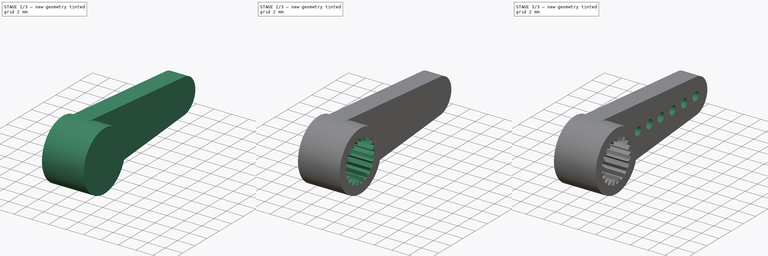
[diagram: build sequence overview — one tinted view per stage of 3, left to right]
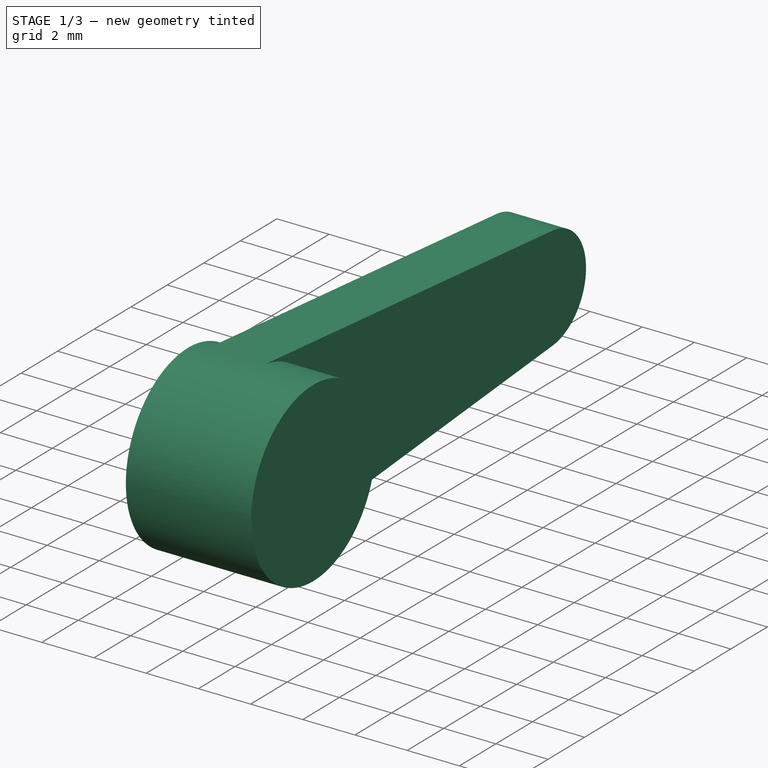
[diagram: stage 1 of 3 — iso view after this stage's code; geometry added in this stage tinted green]
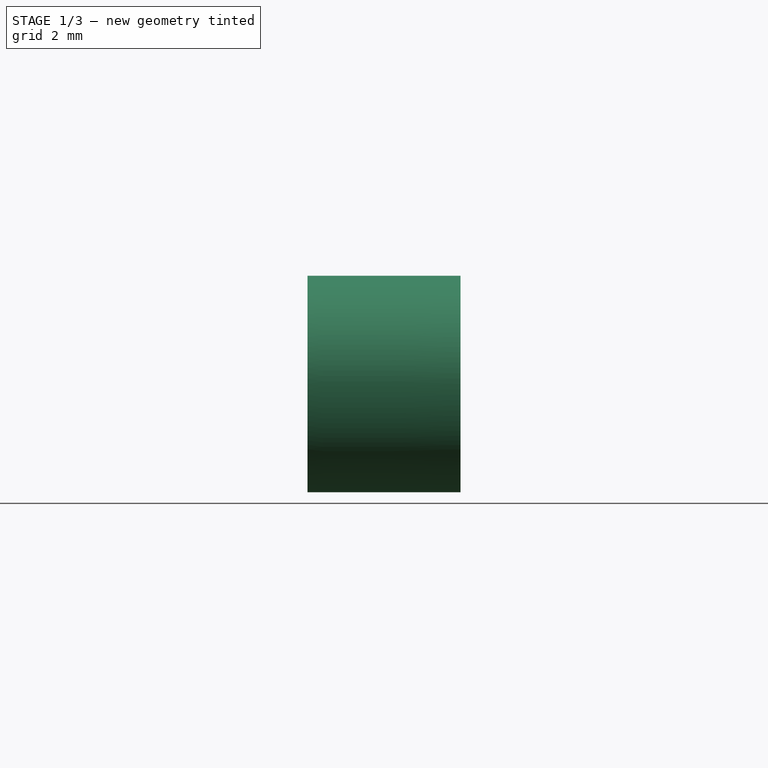
[diagram: stage 1 of 3 — front view after this stage's code; geometry added in this stage tinted green]
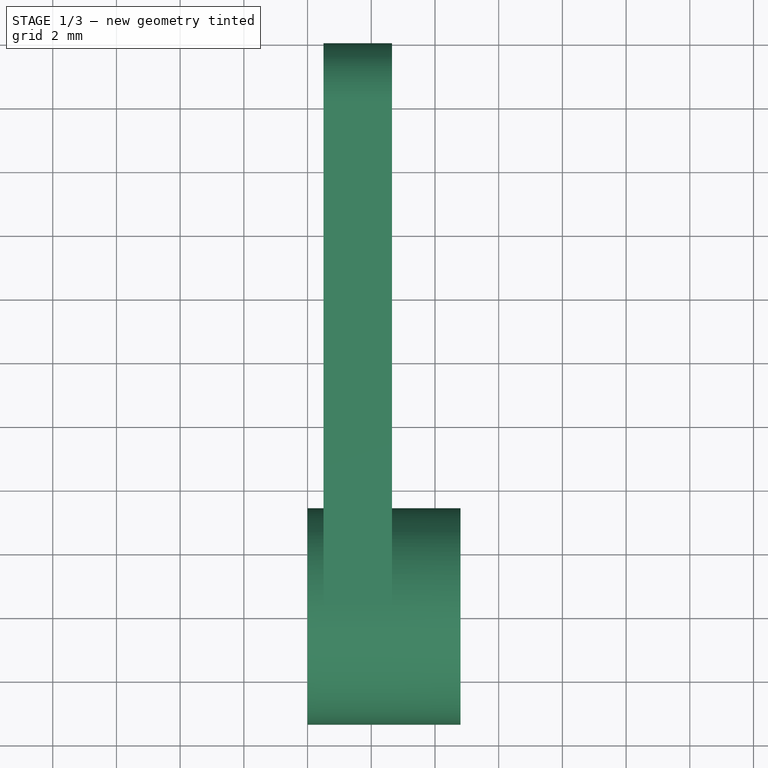
[diagram: stage 1 of 3 — top view after this stage's code; geometry added in this stage tinted green]
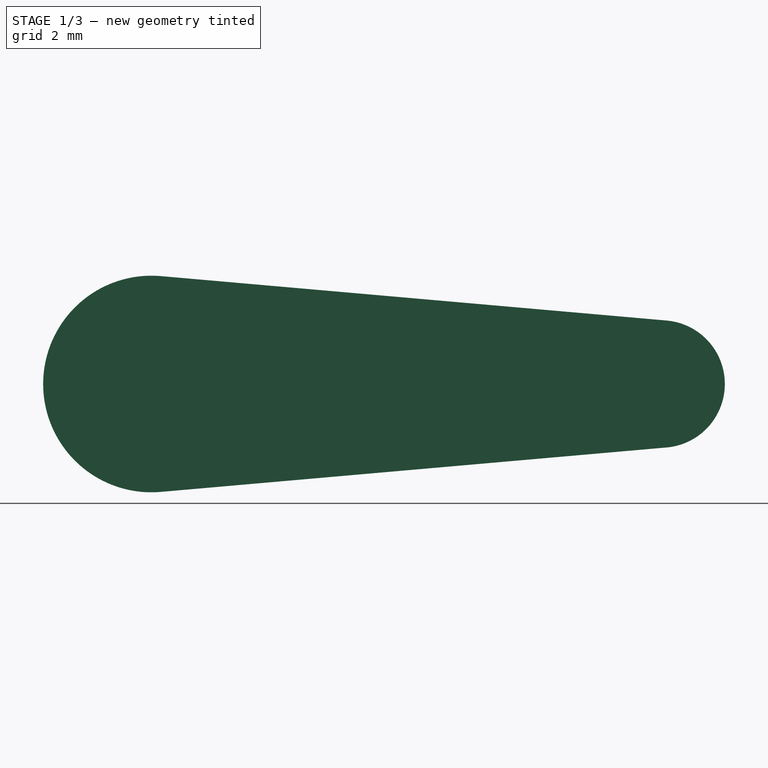
[diagram: stage 1 of 3 — right view after this stage's code; geometry added in this stage tinted green]
FCSTD DOCUMENT  (FreeCAD 0.21R33771 (Git))
Label: MG90S_bras_01
License: All rights reserved
LicenseURL: http://en.wikipedia.org/wiki/All_rights_reserved
objects: Sketcher::SketchObject×6, PartDesign::Pocket×4, PartDesign::Pad×2, PartDesign::PolarPattern×1, PartDesign::Body×1
note: 20 computed .brp shape members not serialized (recipe doc carries the construction recipe); baked Part::Feature solids carry a one-line shape summary decoded from their .brp

FEATURE [Sketcher::SketchObject] Sketch079
  FullyConstrained = true
  MapMode = 5
  Placement = pos=(0,0,0) rot=(0.57735,0.57735,0.57735;2.0944rad)
  Support = -> [YZ_Plane015]
  sketch-geometry (1):
    g0: Circle CenterX=0 CenterY=0 CenterZ=0 NormalX=0 NormalY=0 NormalZ=1 AngleXU=0 Radius=3.4
  constraints (2):
    c: Diameter(g0) = 6.8
    c: Coincident(g0,g-1)
FEATURE [PartDesign::Pad] Pad047
  Direction = (1,-2e-16,3e-16)
  Length = 4.8
  Length2 = 10
  Placement = pos=(0,0,0) rot=(0.57735,0.57735,0.57735;2.0944rad)
  Profile = -> Sketch079
  ReferenceAxis = -> Sketch079 [N_Axis]
  Type = 0
FEATURE [Sketcher::SketchObject] Sketch080
  AttachmentOffset = pos=(0,0,0.5) rot=(0,0,1;0rad)
  FullyConstrained = true
  MapMode = 5
  Placement = pos=(0.5,-1e-16,1e-16) rot=(0.57735,0.57735,0.57735;2.0944rad)
  Support = -> [YZ_Plane015]
  sketch-geometry (5):
    g0: ArcOfCircle CenterX=16 CenterY=0 CenterZ=0 NormalX=0 NormalY=0 NormalZ=1 AngleXU=0 Radius=2 StartAngle=4.8 EndAngle=7.76637
    g1: GeomPoint X=0 Y=0 Z=0
    g2: ArcOfCircle CenterX=0 CenterY=0 CenterZ=0 NormalX=0 NormalY=0 NormalZ=1 AngleXU=0 Radius=3.4 StartAngle=1.48318 EndAngle=4.8
    g3: LineSegment StartX=0.2975 StartY=3.38696 StartZ=0 EndX=16.175 EndY=1.99233 EndZ=0
    g4: LineSegment StartX=0.2975 StartY=-3.38696 StartZ=0 EndX=16.175 EndY=-1.99233 EndZ=0
  constraints (11):
    c: PointOnObject(g1,g-2)
    c: Horizontal(g0,g1)
    c: DistanceX(g1,g0) = 16
    c: Tangent(g2,g3) = 1.5708
    c: Tangent(g4,g2) = -1.5708
    c: Tangent(g0,g3) = 1.5708
    c: Tangent(g0,g4) = -1.5708
    c: Diameter(g2) = 6.8
    c: Diameter(g0) = 4
    c: Coincident(g2,g-1)
    c: PointOnObject(g0,g-1)
FEATURE [PartDesign::Pad] Pad048
  BaseFeature = -> Pad047
  Direction = (1,-2e-16,3e-16)
  Length = 2.15
  Length2 = 10
  Placement = pos=(0,0,0) rot=(0.57735,0.57735,0.57735;2.0944rad)
  Profile = -> Sketch080
  ReferenceAxis = -> Sketch080 [N_Axis]
  Type = 0
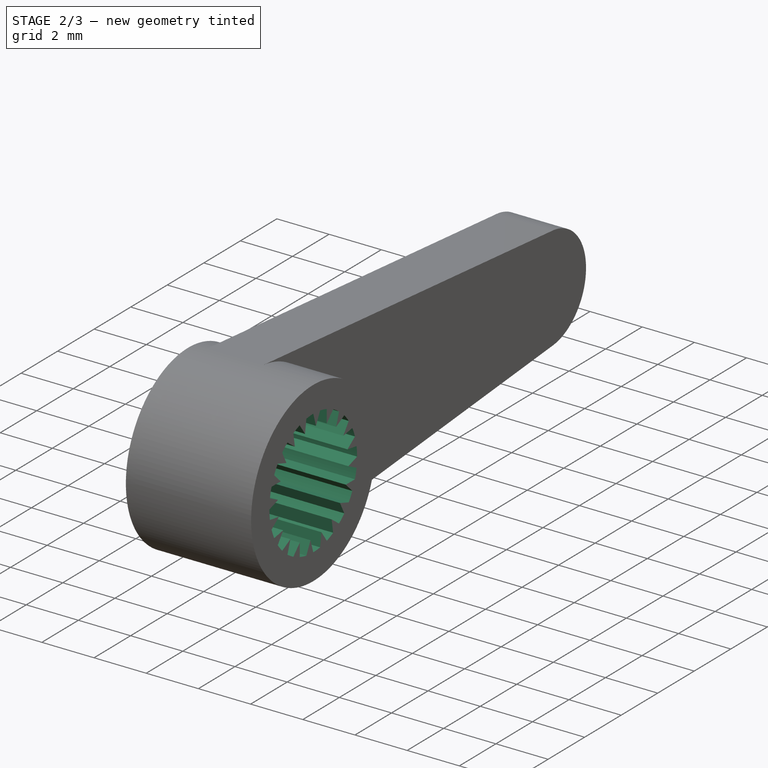
[diagram: stage 2 of 3 — iso view after this stage's code; geometry added in this stage tinted green]
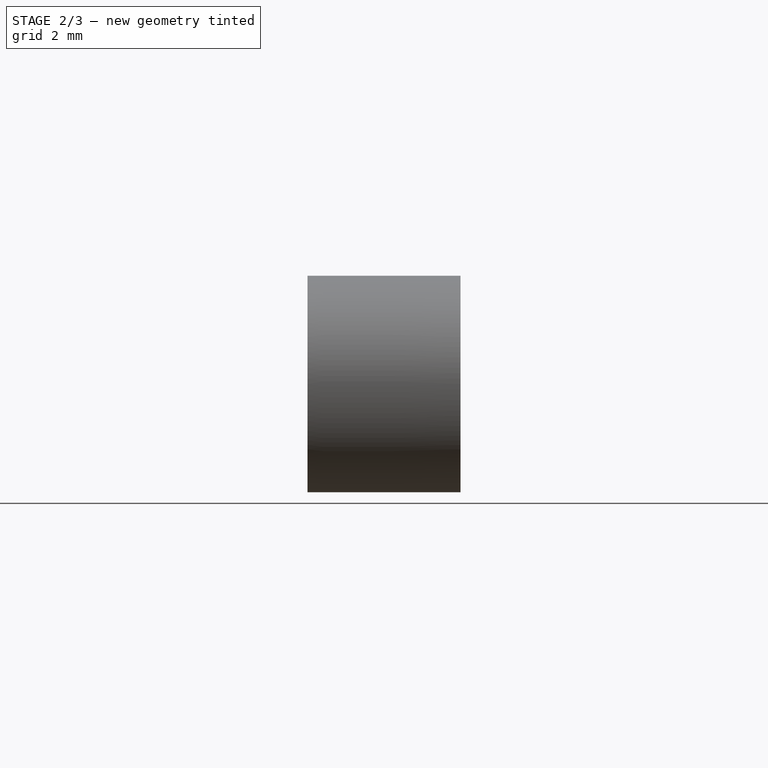
[diagram: stage 2 of 3 — front view after this stage's code; geometry added in this stage tinted green]
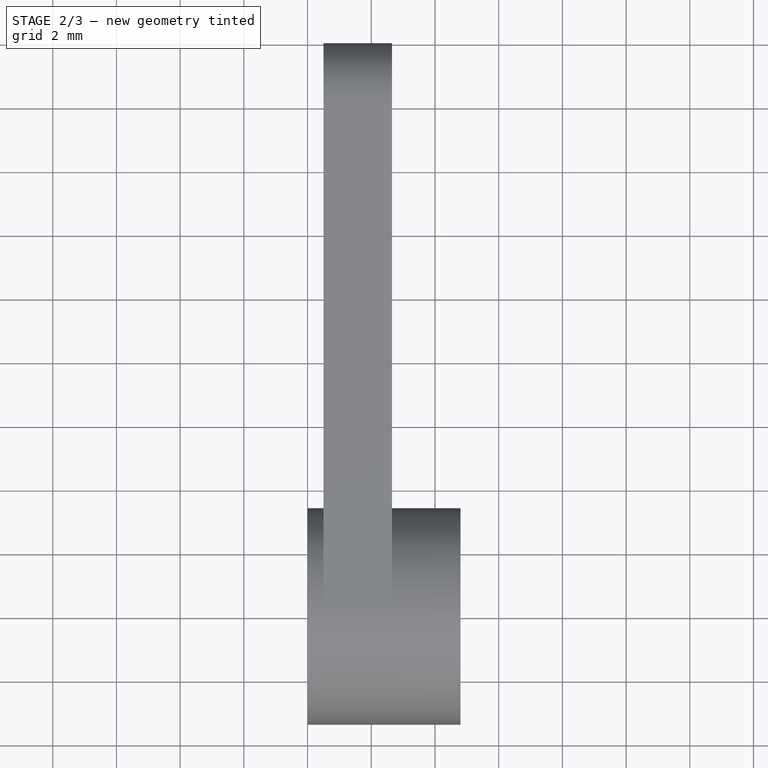
[diagram: stage 2 of 3 — top view after this stage's code; geometry added in this stage tinted green]
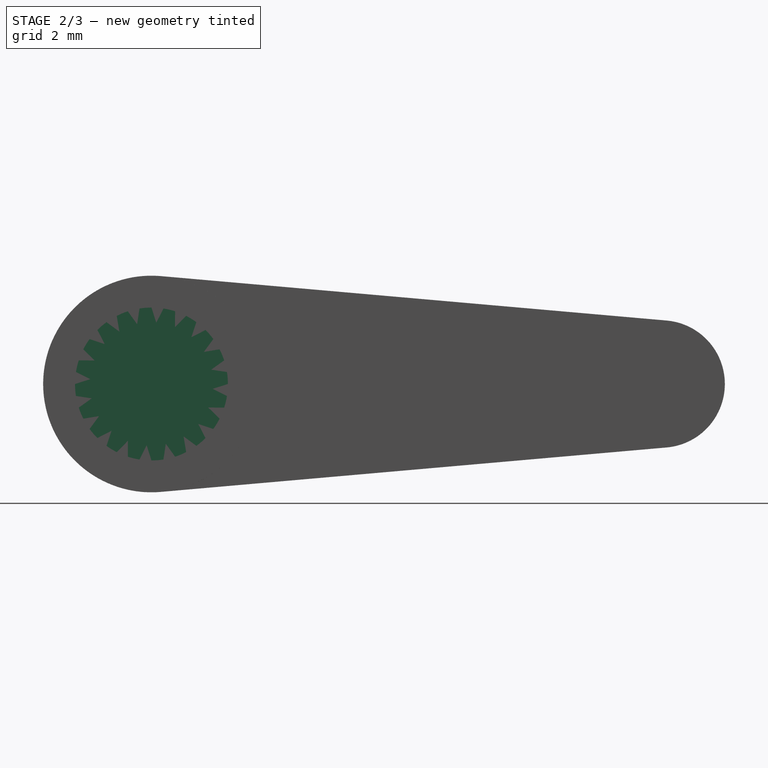
[diagram: stage 2 of 3 — right view after this stage's code; geometry added in this stage tinted green]
FEATURE [Sketcher::SketchObject] Sketch081
  FullyConstrained = false
  MapMode = 5
  Placement = pos=(4.8,-1.1e-15,1.1e-15) rot=(0.57735,0.57735,0.57735;2.0944rad)
  Support = -> [Pad048]
  sketch-geometry (8):
    g0: LineSegment StartX=0 StartY=0 StartZ=0 EndX=3.13957 EndY=0.497259 EndZ=0
    g1: Circle CenterX=0 CenterY=0 CenterZ=0 NormalX=0 NormalY=0 NormalZ=1 AngleXU=0 Radius=2.4
    g2: LineSegment StartX=0 StartY=0 StartZ=0 EndX=3.0275 EndY=-0.479508 EndZ=0
    g3: LineSegment StartX=2.4 StartY=0 StartZ=0 EndX=1.92347 EndY=-0.15138 EndZ=0
    g4: LineSegment StartX=1.92347 StartY=-0.15138 StartZ=0 EndX=2.37045 EndY=-0.375443 EndZ=0
    g5: ArcOfCircle CenterX=0 CenterY=0 CenterZ=0 NormalX=0 NormalY=0 NormalZ=1 AngleXU=0 Radius=2.4 StartAngle=0 EndAngle=0.15708
    g6: LineSegment StartX=2.37045 StartY=0.375443 StartZ=0 EndX=0 EndY=-1e-16 EndZ=0
    g7: LineSegment StartX=0 StartY=0 StartZ=0 EndX=2.37045 EndY=-0.375443 EndZ=0
  constraints (20):
    c: Coincident(g0,g-1)
    c: Coincident(g1,g0)
    c: Diameter(g1) = 4.8
    c: Angle(g-1,g0) = 0.15708
    c: Coincident(g2,g0)
    c: Angle(g2,g-1) = 0.15708
    c: PointOnObject(g3,g1)
    c: Coincident(g4,g3)
    c: PointOnObject(g4,g2)
    c: Coincident(g5,g0)
    c: Coincident(g5,g3)
    c: PointOnObject(g5,g0)
    c: PointOnObject(g4,g1)
    c: Equal(g3,g4)
    c: Distance(g3) = 0.5
    c: PointOnObject(g3,g-1)
    c: Coincident(g6,g5)
    c: Coincident(g6,g5)
    c: Coincident(g7,g5)
    c: Coincident(g7,g4)
FEATURE [PartDesign::Pocket] Pocket033
  BaseFeature = -> Pad048
  Direction = (-1,9e-16,-6e-16)
  Length = 3
  Length2 = 5
  Placement = pos=(0,0,0) rot=(0.57735,0.57735,0.57735;2.0944rad)
  Profile = -> Sketch081
  ReferenceAxis = -> Sketch081 [N_Axis]
  Type = 0
FEATURE [PartDesign::PolarPattern] PolarPattern
  Angle = 360
  Axis = -> Sketch081 [N_Axis]
  BaseFeature = -> Pocket033
  Occurrences = 20
  Originals = -> [Pocket033]
  Placement = pos=(0,0,0) rot=(0.57735,0.57735,0.57735;2.0944rad)
FEATURE [Sketcher::SketchObject] Sketch082
  FullyConstrained = true
  MapMode = 5
  Placement = pos=(0,0,0) rot=(0.57735,0.57735,-0.57735;4.18879rad)
  Support = -> [PolarPattern]
  sketch-geometry (1):
    g0: Circle CenterX=0 CenterY=0 CenterZ=0 NormalX=0 NormalY=0 NormalZ=1 AngleXU=0 Radius=2.4
  constraints (2):
    c: Coincident(g0,g-1)
    c: Diameter(g0) = 4.8
FEATURE [PartDesign::Pocket] Pocket034
  BaseFeature = -> PolarPattern
  Direction = (1,-8e-16,7e-16)
  Length = 1
  Length2 = 5
  Placement = pos=(0,0,0) rot=(0.57735,0.57735,0.57735;2.0944rad)
  Profile = -> Sketch082
  ReferenceAxis = -> Sketch082 [N_Axis]
  Type = 0
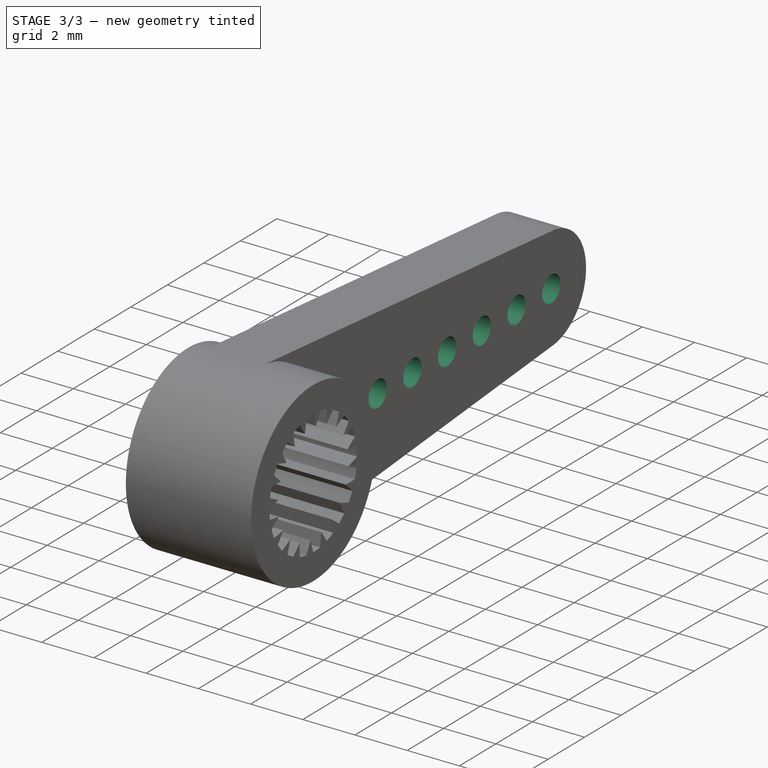
[diagram: stage 3 of 3 — iso view after this stage's code; geometry added in this stage tinted green]
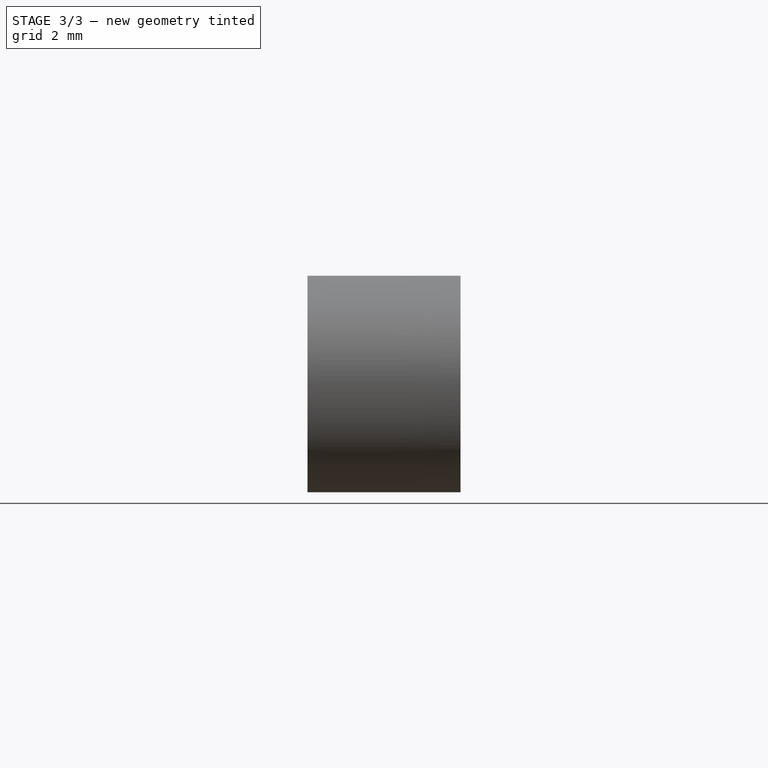
[diagram: stage 3 of 3 — front view after this stage's code; geometry added in this stage tinted green]
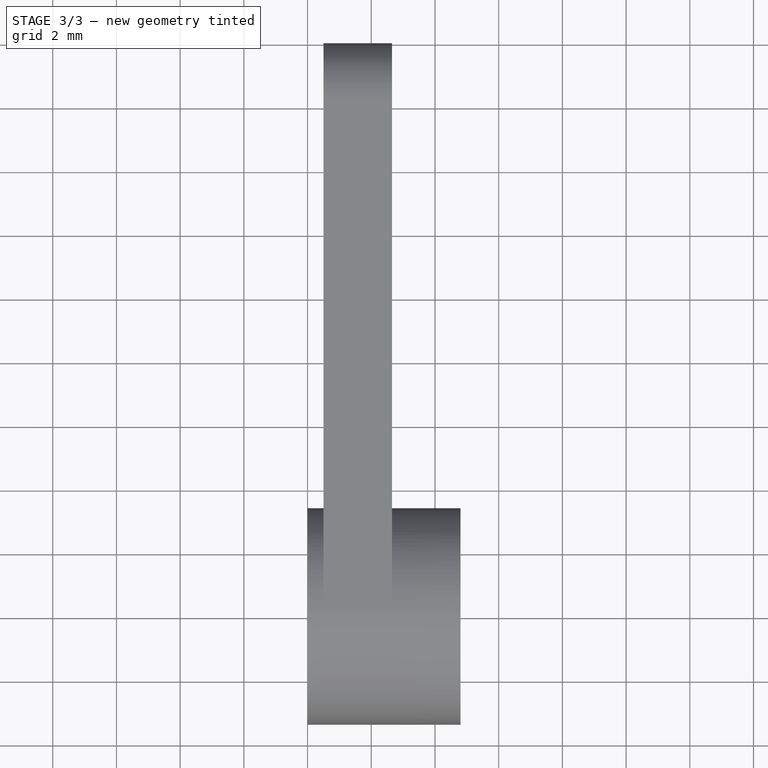
[diagram: stage 3 of 3 — top view after this stage's code; geometry added in this stage tinted green]
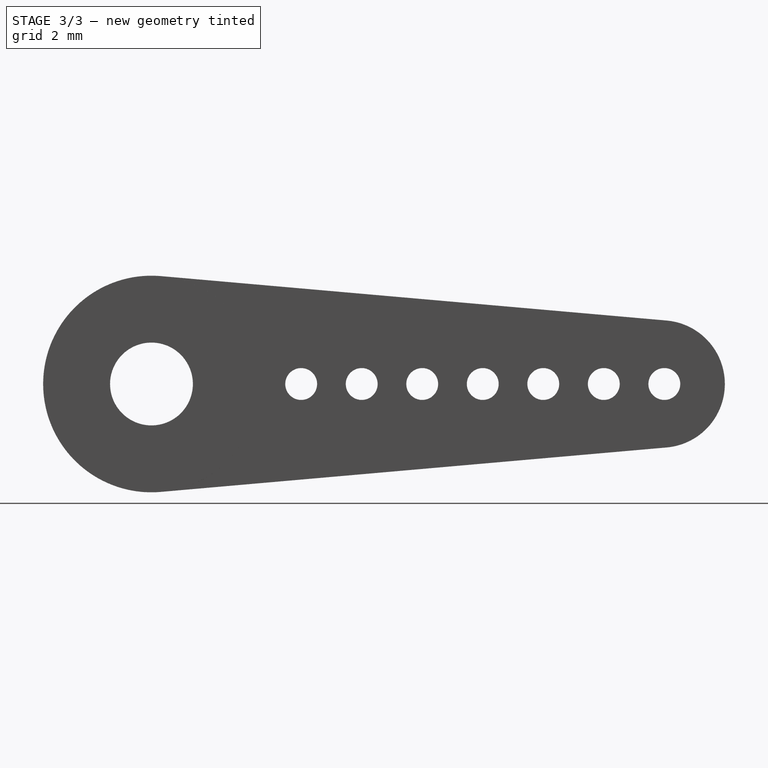
[diagram: stage 3 of 3 — right view after this stage's code; geometry added in this stage tinted green]
FEATURE [Sketcher::SketchObject] Sketch083
  FullyConstrained = true
  MapMode = 5
  Placement = pos=(1,-7e-16,6e-16) rot=(-0.57735,-0.57735,0.57735;2.0944rad)
  Support = -> [Pocket034]
  sketch-geometry (1):
    g0: Circle CenterX=0 CenterY=0 CenterZ=0 NormalX=0 NormalY=0 NormalZ=1 AngleXU=0 Radius=1.3
  constraints (2):
    c: Coincident(g0,g-1)
    c: Diameter(g0) = 2.6
FEATURE [PartDesign::Pocket] Pocket035
  BaseFeature = -> Pocket034
  Direction = (1,-9e-16,8e-16)
  Length = 5
  Length2 = 5
  Placement = pos=(0,0,0) rot=(0.57735,0.57735,0.57735;2.0944rad)
  Profile = -> Sketch083
  ReferenceAxis = -> Sketch083 [N_Axis]
  Type = 0
FEATURE [Sketcher::SketchObject] Sketch084
  FullyConstrained = true
  MapMode = 5
  Placement = pos=(0.5,-1e-16,1e-16) rot=(0.57735,0.57735,-0.57735;4.18879rad)
  Support = -> [Pocket035]
  sketch-geometry (13):
    g0: Circle CenterX=4.7 CenterY=0 CenterZ=0 NormalX=0 NormalY=0 NormalZ=1 AngleXU=0 Radius=0.5
    g1: Circle CenterX=6.6 CenterY=2.3e-15 CenterZ=0 NormalX=0 NormalY=0 NormalZ=1 AngleXU=0 Radius=0.5
    g2: LineSegment StartX=4.7 StartY=0 StartZ=0 EndX=6.6 EndY=2.3e-15 EndZ=0
    g3: Circle CenterX=8.5 CenterY=7.7e-15 CenterZ=0 NormalX=0 NormalY=0 NormalZ=1 AngleXU=0 Radius=0.5
    g4: LineSegment StartX=6.6 StartY=2.3e-15 StartZ=0 EndX=8.5 EndY=7.7e-15 EndZ=0
    g5: Circle CenterX=10.4 CenterY=1.28e-14 CenterZ=0 NormalX=0 NormalY=0 NormalZ=1 AngleXU=0 Radius=0.5
    g6: LineSegment StartX=8.5 StartY=7.7e-15 StartZ=0 EndX=10.4 EndY=1.28e-14 EndZ=0
    g7: Circle CenterX=12.3 CenterY=1.77e-14 CenterZ=0 NormalX=0 NormalY=0 NormalZ=1 AngleXU=0 Radius=0.5
    g8: LineSegment StartX=10.4 StartY=1.28e-14 StartZ=0 EndX=12.3 EndY=1.77e-14 EndZ=0
    g9: Circle CenterX=14.2 CenterY=2.26e-14 CenterZ=0 NormalX=0 NormalY=0 NormalZ=1 AngleXU=0 Radius=0.5
    g10: LineSegment StartX=12.3 StartY=1.77e-14 StartZ=0 EndX=14.2 EndY=2.26e-14 EndZ=0
    g11: Circle CenterX=16.1 CenterY=2.69e-14 CenterZ=0 NormalX=0 NormalY=0 NormalZ=1 AngleXU=0 Radius=0.5
    g12: LineSegment StartX=14.2 StartY=2.26e-14 StartZ=0 EndX=16.1 EndY=2.69e-14 EndZ=0
  constraints (33):
    c: PointOnObject(g0,g-1)
    c: Diameter(g0) = 1
    c: DistanceX(g-1,g0) = 4.7
    c: Diameter(g1) = 1
    c: Coincident(g0,g2)
    c: Coincident(g1,g2)
    c: Distance(g2) = 1.9
    c: Angle(g2) = 0
    c: Diameter(g3) = 1
    c: Coincident(g1,g4)
    c: Coincident(g3,g4)
    c: Equal(g2,g4)
    c: Parallel(g4,g2)
    c: Diameter(g5) = 1
    c: Coincident(g3,g6)
    c: Coincident(g5,g6)
    c: Equal(g2,g6)
    c: Parallel(g6,g2)
    c: Diameter(g7) = 1
    c: Coincident(g5,g8)
    c: Coincident(g7,g8)
    c: Equal(g2,g8)
    c: Parallel(g8,g2)
    c: Diameter(g9) = 1
    c: Coincident(g7,g10)
    c: Coincident(g9,g10)
    c: Equal(g2,g10)
    c: Parallel(g10,g2)
    c: Diameter(g11) = 1
    c: Coincident(g9,g12)
    c: Coincident(g11,g12)
    c: Equal(g2,g12)
    c: Parallel(g12,g2)
FEATURE [PartDesign::Pocket] Pocket036
  BaseFeature = -> Pocket035
  Direction = (1,-1.3e-15,6e-16)
  Length = 5
  Length2 = 5
  Placement = pos=(0,0,0) rot=(0.57735,0.57735,0.57735;2.0944rad)
  Profile = -> Sketch084
  ReferenceAxis = -> Sketch084 [N_Axis]
  Type = 0
FEATURE [PartDesign::Body] Body019  label="levier_servo"
  Group = -> [Sketch079,Pad047,Sketch080,Pad048,Sketch081,Pocket033,PolarPattern,Sketch082,Pocket034,Sketch083,Pocket035,Sketch084,Pocket036]
  Origin = -> Origin015
  Tip = -> Pocket036
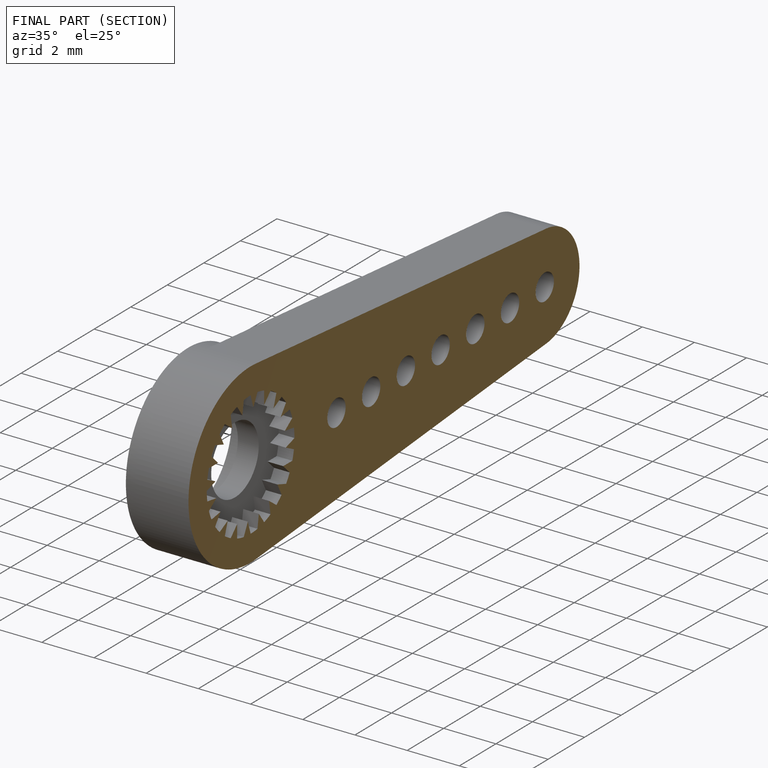
[diagram: finished part — half-section view (interior)]
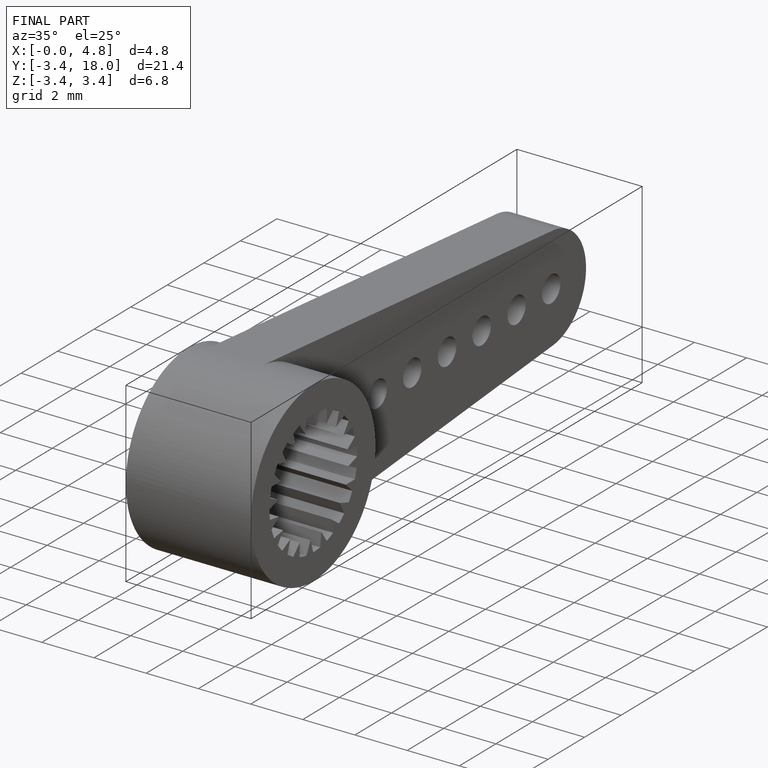
[diagram: finished part — iso view with bounding-box wireframe]
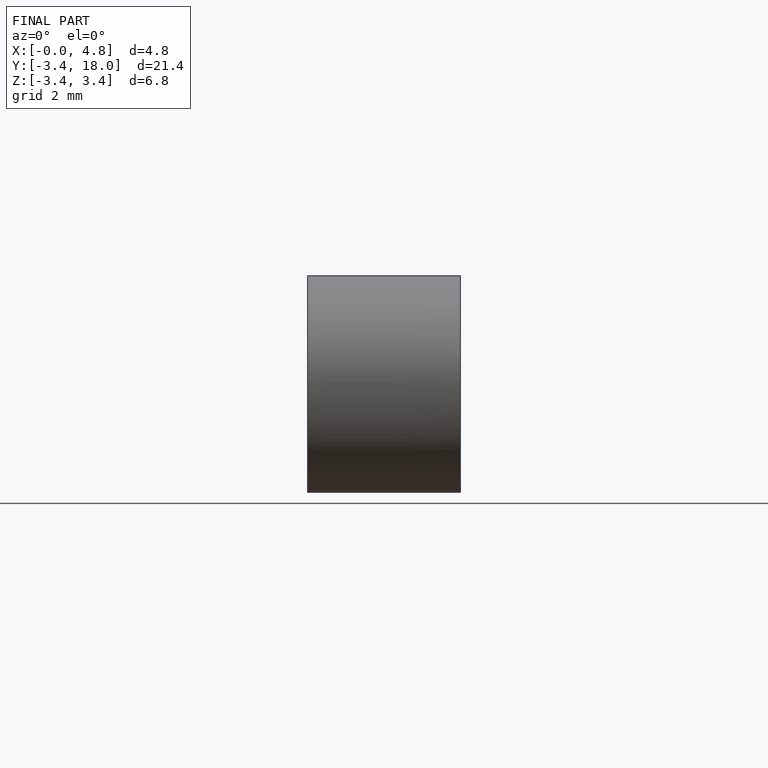
[diagram: finished part — front view with bounding-box wireframe]
